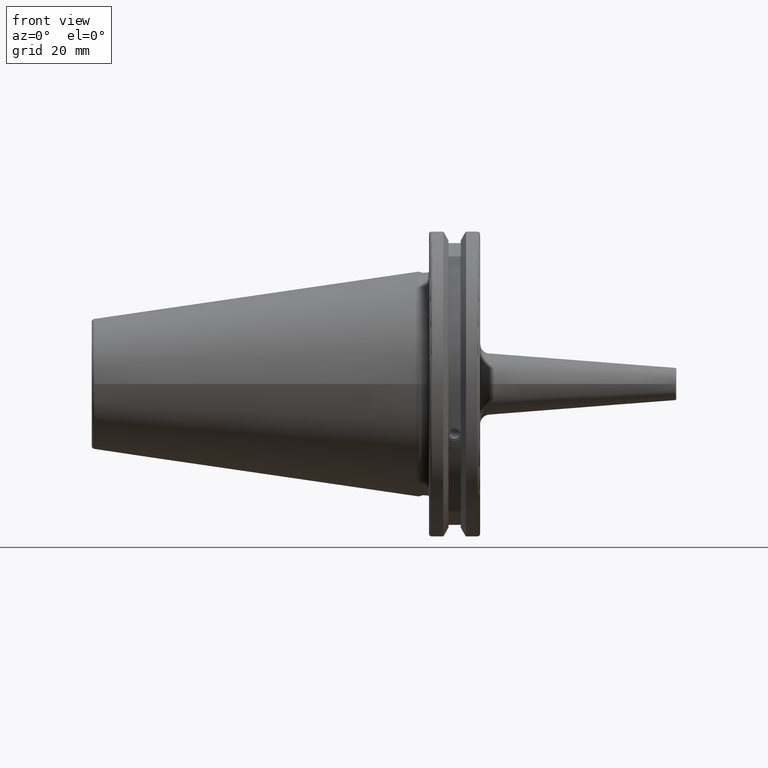
[diagram: clean part render]
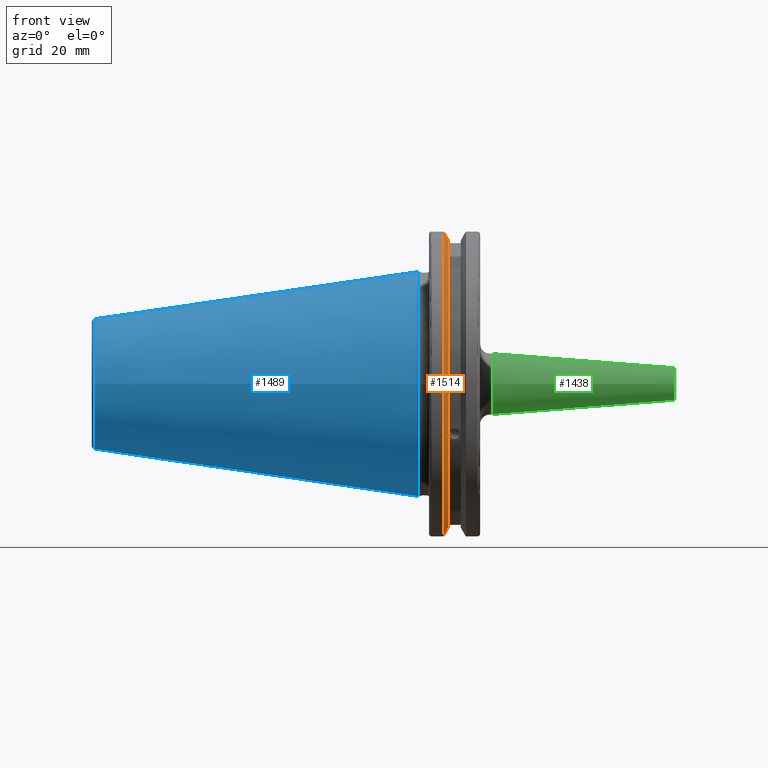
[diagram: same view with three faces highlighted in distinct colors, each labeled with its STEP entity id]
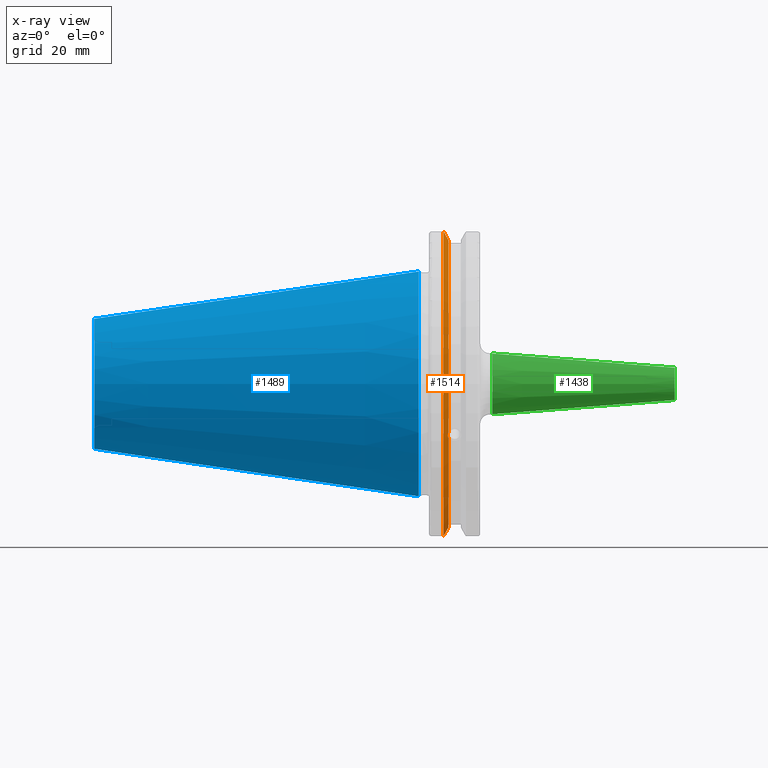
[diagram: x-ray of the same camera — body ghosted, the three highlighted faces saturated]
A machine part, front view with three faces highlighted in distinct colors.
The next image is the same camera in x-ray (body ghosted, the three faces saturated) — at least one of them is partly hidden behind the body in this view.
Their STEP definitions:

[orange] entity #1514 — the highlighted conical surface has half-angle 60 deg.
#28=(
BOUNDED_CURVE()
B_SPLINE_CURVE(2,(#2866,#2867,#2868),.UNSPECIFIED.,.F.,.F.)
B_SPLINE_CURVE_WITH_KNOTS((3,3),(0.,0.275823910674601),.UNSPECIFIED.)
CURVE()
GEOMETRIC_REPRESENTATION_ITEM()
RATIONAL_B_SPLINE_CURVE((1.,1.00038235573593,1.00012873636487))
REPRESENTATION_ITEM('')
);
#29=(
BOUNDED_CURVE()
B_SPLINE_CURVE(2,(#2878,#2879,#2880),.UNSPECIFIED.,.F.,.F.)
B_SPLINE_CURVE_WITH_KNOTS((3,3),(0.0558332664507492,0.331657177124507),
 .UNSPECIFIED.)
CURVE()
GEOMETRIC_REPRESENTATION_ITEM()
RATIONAL_B_SPLINE_CURVE((1.00012873636807,1.00038235574544,1.))
REPRESENTATION_ITEM('')
);
#30=(
BOUNDED_CURVE()
B_SPLINE_CURVE(2,(#2913,#2914,#2915),.UNSPECIFIED.,.F.,.F.)
B_SPLINE_CURVE_WITH_KNOTS((3,3),(0.,0.0648240472897372),.UNSPECIFIED.)
CURVE()
GEOMETRIC_REPRESENTATION_ITEM()
RATIONAL_B_SPLINE_CURVE((1.,1.00011477674836,1.00019140645948))
REPRESENTATION_ITEM('')
);
#31=(
BOUNDED_CURVE()
B_SPLINE_CURVE(2,(#2921,#2922,#2923),.UNSPECIFIED.,.F.,.F.)
B_SPLINE_CURVE_WITH_KNOTS((3,3),(0.325260944932348,0.390084992222201),
 .UNSPECIFIED.)
CURVE()
GEOMETRIC_REPRESENTATION_ITEM()
RATIONAL_B_SPLINE_CURVE((1.00019140645916,1.00011477674817,1.))
REPRESENTATION_ITEM('')
);
#48=B_SPLINE_CURVE_WITH_KNOTS('',3,(#2450,#2451,#2452,#2453,#2454,#2455,
#2456,#2457,#2458,#2459,#2460,#2461,#2462,#2463),.UNSPECIFIED.,.F.,.F.,
(4,2,2,2,2,2,4),(0.426712868358719,0.441644498666906,0.48031331322313,0.518982127779354,
0.557650942335578,0.596319756891801,0.611251387199988),.UNSPECIFIED.);
#87=CONICAL_SURFACE('',#1694,47.8172386482472,1.0471975511966);
#431=FACE_OUTER_BOUND('',#533,.T.);
#533=EDGE_LOOP('',(#1405,#1406,#1407,#1408,#1409,#1410,#1411,#1412));
#568=CIRCLE('',#1598,46.4219772964944);
#592=CIRCLE('',#1648,49.2125);
#608=CIRCLE('',#1695,46.4219772964944);
#655=VERTEX_POINT('',#2447);
#656=VERTEX_POINT('',#2449);
#673=VERTEX_POINT('',#2540);
#731=VERTEX_POINT('',#2863);
#732=VERTEX_POINT('',#2865);
#735=VERTEX_POINT('',#2877);
#739=VERTEX_POINT('',#2911);
#740=VERTEX_POINT('',#2917);
#817=EDGE_CURVE('',#656,#655,#48,.T.);
#840=EDGE_CURVE('',#656,#673,#568,.T.);
#919=EDGE_CURVE('',#732,#731,#28,.T.);
#925=EDGE_CURVE('',#735,#673,#29,.T.);
#933=EDGE_CURVE('',#739,#731,#30,.T.);
#935=EDGE_CURVE('',#739,#740,#592,.T.);
#936=EDGE_CURVE('',#735,#740,#31,.T.);
#978=EDGE_CURVE('',#732,#655,#608,.T.);
#1405=ORIENTED_EDGE('',*,*,#817,.T.);
#1406=ORIENTED_EDGE('',*,*,#978,.F.);
#1407=ORIENTED_EDGE('',*,*,#919,.T.);
#1408=ORIENTED_EDGE('',*,*,#933,.F.);
#1409=ORIENTED_EDGE('',*,*,#935,.T.);
#1410=ORIENTED_EDGE('',*,*,#936,.F.);
#1411=ORIENTED_EDGE('',*,*,#925,.T.);
#1412=ORIENTED_EDGE('',*,*,#840,.F.);
#1514=ADVANCED_FACE('',(#431),#87,.T.);
#1598=AXIS2_PLACEMENT_3D('',#2541,#1847,#1848);
#1648=AXIS2_PLACEMENT_3D('',#2919,#1988,#1989);
#1694=AXIS2_PLACEMENT_3D('',#3035,#2101,#2102);
#1695=AXIS2_PLACEMENT_3D('',#3036,#2103,#2104);
#1847=DIRECTION('center_axis',(1.,0.,0.));
#1848=DIRECTION('ref_axis',(0.,0.,-1.));
#1988=DIRECTION('center_axis',(1.,0.,0.));
#1989=DIRECTION('ref_axis',(0.,0.,-1.));
#2101=DIRECTION('center_axis',(-1.,0.,0.));
#2102=DIRECTION('ref_axis',(0.,-1.,-1.22464679914735E-16));
#2103=DIRECTION('center_axis',(1.,0.,0.));
#2104=DIRECTION('ref_axis',(0.,0.,-1.));
#2447=CARTESIAN_POINT('',(9.2191,-43.9096390749305,-15.0646464421033));
#2449=CARTESIAN_POINT('',(9.2191,-43.3201030900029,-16.684383248648));
#2450=CARTESIAN_POINT('Ctrl Pts',(9.21910000000001,-43.3201030900029,-16.6843832486479));
#2451=CARTESIAN_POINT('Ctrl Pts',(9.20211843903392,-43.3613106941341,-16.6592273018006));
#2452=CARTESIAN_POINT('Ctrl Pts',(9.18608675403322,-43.4012416983557,-16.6326763251437));
#2453=CARTESIAN_POINT('Ctrl Pts',(9.13238673845037,-43.5391037343221,-16.5325130832406));
#2454=CARTESIAN_POINT('Ctrl Pts',(9.09621610663556,-43.6406982153491,-16.441180795372));
#2455=CARTESIAN_POINT('Ctrl Pts',(9.04690868251975,-43.8110833825827,-16.2291323464527));
#2456=CARTESIAN_POINT('Ctrl Pts',(9.0341,-43.8794096049168,-16.10796730316));
#2457=CARTESIAN_POINT('Ctrl Pts',(9.0341,-43.9675796948952,-15.8657219718732));
#2458=CARTESIAN_POINT('Ctrl Pts',(9.04690868251975,-43.9931221605126,-15.7289849146254));
#2459=CARTESIAN_POINT('Ctrl Pts',(9.09621610663556,-43.9989016655819,-15.4570249042867));
#2460=CARTESIAN_POINT('Ctrl Pts',(9.13238673845037,-43.9797830409458,-15.3217566390708));
#2461=CARTESIAN_POINT('Ctrl Pts',(9.18608675403322,-43.9385582852181,-15.1564111356409));
#2462=CARTESIAN_POINT('Ctrl Pts',(9.20211843903392,-43.9250360001461,-15.1104047527575));
#2463=CARTESIAN_POINT('Ctrl Pts',(9.2191,-43.9096390749305,-15.0646464421033));
#2540=CARTESIAN_POINT('',(9.2191,-12.95,-44.5791147973604));
#2541=CARTESIAN_POINT('Origin',(9.2191,0.,0.));
#2863=CARTESIAN_POINT('',(7.88638960562424,-12.95,46.9780755322918));
#2865=CARTESIAN_POINT('',(9.2191,-12.95,44.5791147973604));
#2866=CARTESIAN_POINT('Ctrl Pts',(9.2191,-12.95,44.5791147973604));
#2867=CARTESIAN_POINT('Ctrl Pts',(8.57020449055857,-12.95,45.7494966802148));
#2868=CARTESIAN_POINT('Ctrl Pts',(7.88638960562424,-12.95,46.9780755322918));
#2877=CARTESIAN_POINT('',(7.88638960562425,-12.95,-46.9780755322918));
#2878=CARTESIAN_POINT('Ctrl Pts',(7.88638960562425,-12.95,-46.9780755322918));
#2879=CARTESIAN_POINT('Ctrl Pts',(8.57020449054166,-12.95,-45.7494966802452));
#2880=CARTESIAN_POINT('Ctrl Pts',(9.2191,-12.95,-44.5791147973604));
#2911=CARTESIAN_POINT('',(7.60799096595127,-13.4317035994433,47.3440544806494));
#2913=CARTESIAN_POINT('Ctrl Pts',(7.60799096595126,-13.4317035994433,47.3440544806494));
#2914=CARTESIAN_POINT('Ctrl Pts',(7.7482689666382,-13.1896660169966,47.1601640966265));
#2915=CARTESIAN_POINT('Ctrl Pts',(7.88638960562424,-12.95,46.9780755322918));
#2917=CARTESIAN_POINT('',(7.60799096595127,-13.4317035994433,-47.3440544806494));
#2919=CARTESIAN_POINT('Origin',(7.60799096595127,0.,0.));
#2921=CARTESIAN_POINT('Ctrl Pts',(7.88638960562425,-12.95,-46.9780755322918));
#2922=CARTESIAN_POINT('Ctrl Pts',(7.74826896663813,-13.1896660169967,-47.1601640966265));
#2923=CARTESIAN_POINT('Ctrl Pts',(7.60799096595127,-13.4317035994434,-47.3440544806494));
#3035=CARTESIAN_POINT('Origin',(8.41354548297563,0.,0.));
#3036=CARTESIAN_POINT('Origin',(9.2191,0.,0.));

[blue] entity #1489 — the highlighted conical surface has half-angle 8.297 deg.
#82=CONICAL_SURFACE('',#1660,27.5166666666666,0.14481249823894);
#160=LINE('',#2967,#252);
#252=VECTOR('',#2017,27.5166666666666);
#406=FACE_OUTER_BOUND('',#506,.T.);
#506=EDGE_LOOP('',(#1293,#1294,#1295,#1296,#1297));
#594=CIRCLE('',#1654,20.233121911427);
#595=CIRCLE('',#1655,20.233121911427);
#599=CIRCLE('',#1661,34.925);
#744=VERTEX_POINT('',#2954);
#745=VERTEX_POINT('',#2955);
#748=VERTEX_POINT('',#2965);
#942=EDGE_CURVE('',#744,#745,#594,.T.);
#943=EDGE_CURVE('',#745,#744,#595,.T.);
#947=EDGE_CURVE('',#748,#748,#599,.T.);
#948=EDGE_CURVE('',#748,#745,#160,.T.);
#1293=ORIENTED_EDGE('',*,*,#947,.F.);
#1294=ORIENTED_EDGE('',*,*,#948,.T.);
#1295=ORIENTED_EDGE('',*,*,#942,.F.);
#1296=ORIENTED_EDGE('',*,*,#943,.F.);
#1297=ORIENTED_EDGE('',*,*,#948,.F.);
#1489=ADVANCED_FACE('',(#406),#82,.T.);
#1654=AXIS2_PLACEMENT_3D('',#2956,#2001,#2002);
#1655=AXIS2_PLACEMENT_3D('',#2957,#2003,#2004);
#1660=AXIS2_PLACEMENT_3D('',#2964,#2013,#2014);
#1661=AXIS2_PLACEMENT_3D('',#2966,#2015,#2016);
#2001=DIRECTION('center_axis',(-1.,0.,0.));
#2002=DIRECTION('ref_axis',(0.,-1.,3.06161699786838E-17));
#2003=DIRECTION('center_axis',(-1.,0.,0.));
#2004=DIRECTION('ref_axis',(0.,-1.,3.06161699786838E-17));
#2013=DIRECTION('center_axis',(1.,0.,0.));
#2014=DIRECTION('ref_axis',(0.,1.,0.));
#2015=DIRECTION('center_axis',(1.,0.,0.));
#2016=DIRECTION('ref_axis',(0.,0.,-1.));
#2017=DIRECTION('',(-0.989532981063281,0.144306893071729,1.76724974695192E-17));
#2954=CARTESIAN_POINT('',(-100.744306893072,-2.47784279855872E-15,20.233121911427));
#2955=CARTESIAN_POINT('',(-100.744306893072,-20.233121911427,-2.47784279855872E-15));
#2956=CARTESIAN_POINT('Origin',(-100.744306893072,0.,-3.09730349819841E-15));
#2957=CARTESIAN_POINT('Origin',(-100.744306893072,0.,-3.09730349819841E-15));
#2964=CARTESIAN_POINT('Origin',(-50.8,0.,0.));
#2965=CARTESIAN_POINT('',(-8.88178419700125E-15,-34.925,-4.27707894602213E-15));
#2966=CARTESIAN_POINT('Origin',(0.,0.,0.));
#2967=CARTESIAN_POINT('',(-50.8,-27.5166666666666,-3.3698197756538E-15));

[green] entity #1438 — the highlighted conical surface has half-angle 4.5 deg.
#74=CONICAL_SURFACE('',#1555,7.25,0.0785398163397453);
#89=LINE('',#2141,#181);
#181=VECTOR('',#1734,7.25);
#355=FACE_OUTER_BOUND('',#440,.T.);
#440=EDGE_LOOP('',(#999,#1000,#1001,#1002,#1003));
#545=CIRCLE('',#1553,5.03626342103746);
#546=CIRCLE('',#1554,5.03626342103746);
#547=CIRCLE('',#1556,9.5);
#617=VERTEX_POINT('',#2134);
#618=VERTEX_POINT('',#2136);
#619=VERTEX_POINT('',#2140);
#768=EDGE_CURVE('',#617,#618,#545,.T.);
#769=EDGE_CURVE('',#618,#617,#546,.T.);
#770=EDGE_CURVE('',#618,#619,#89,.T.);
#771=EDGE_CURVE('',#619,#619,#547,.T.);
#999=ORIENTED_EDGE('',*,*,#769,.F.);
#1000=ORIENTED_EDGE('',*,*,#770,.T.);
#1001=ORIENTED_EDGE('',*,*,#771,.T.);
#1002=ORIENTED_EDGE('',*,*,#770,.F.);
#1003=ORIENTED_EDGE('',*,*,#768,.F.);
#1438=ADVANCED_FACE('',(#355),#74,.T.);
#1553=AXIS2_PLACEMENT_3D('',#2137,#1728,#1729);
#1554=AXIS2_PLACEMENT_3D('',#2138,#1730,#1731);
#1555=AXIS2_PLACEMENT_3D('',#2139,#1732,#1733);
#1556=AXIS2_PLACEMENT_3D('',#2142,#1735,#1736);
#1728=DIRECTION('center_axis',(1.,0.,0.));
#1729=DIRECTION('ref_axis',(0.,-1.,3.06161699786838E-17));
#1730=DIRECTION('center_axis',(1.,0.,0.));
#1731=DIRECTION('ref_axis',(0.,-1.,3.06161699786838E-17));
#1732=DIRECTION('center_axis',(-1.,0.,0.));
#1733=DIRECTION('ref_axis',(0.,1.,0.));
#1734=DIRECTION('',(-0.996917333733128,-0.0784590957278454,-9.60846804471016E-18));
#1735=DIRECTION('center_axis',(1.,0.,0.));
#1736=DIRECTION('ref_axis',(0.,0.,-1.));
#2134=CARTESIAN_POINT('',(79.5392295478639,-6.16764387823642E-16,5.03626342103746));
#2136=CARTESIAN_POINT('',(79.5392295478639,-5.03626342103746,-6.16764387823642E-16));
#2137=CARTESIAN_POINT('Origin',(79.5392295478639,0.,-7.70955484779553E-16));
#2138=CARTESIAN_POINT('Origin',(79.5392295478639,0.,-7.70955484779553E-16));
#2139=CARTESIAN_POINT('Origin',(51.4110393436071,0.,0.));
#2140=CARTESIAN_POINT('',(22.8220786872141,-9.5,-1.16341445918999E-15));
#2141=CARTESIAN_POINT('',(51.4110393436071,-7.25,-8.87868929381831E-16));
#2142=CARTESIAN_POINT('Origin',(22.8220786872141,0.,0.));